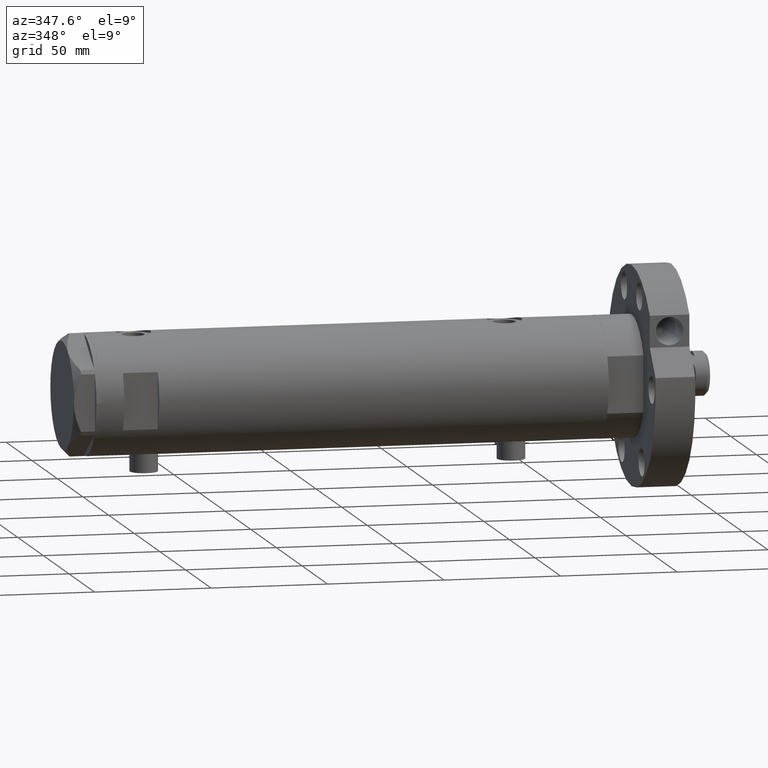
[diagram: clean part render]
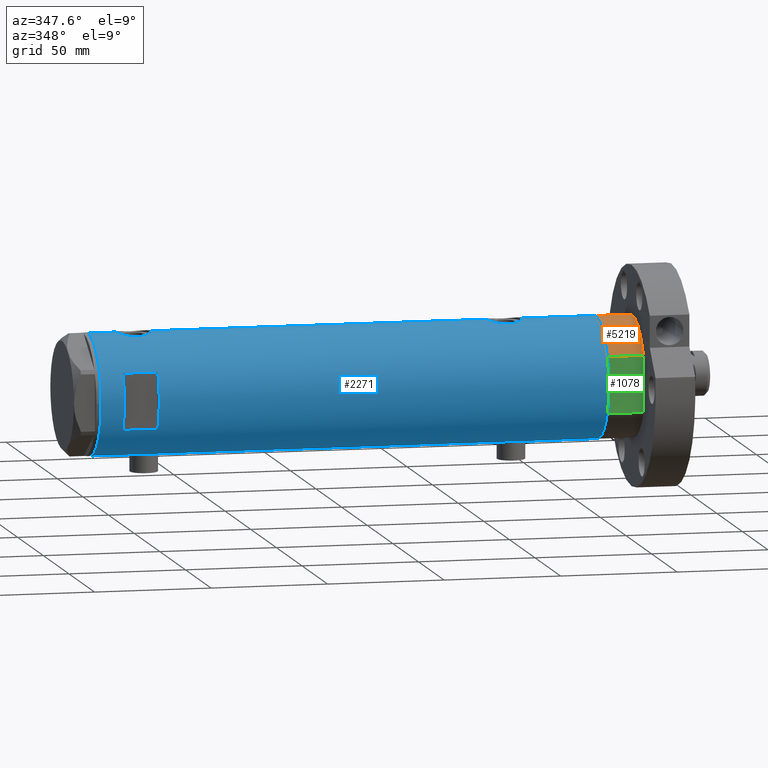
[diagram: same view with three faces highlighted in distinct colors, each labeled with its STEP entity id]
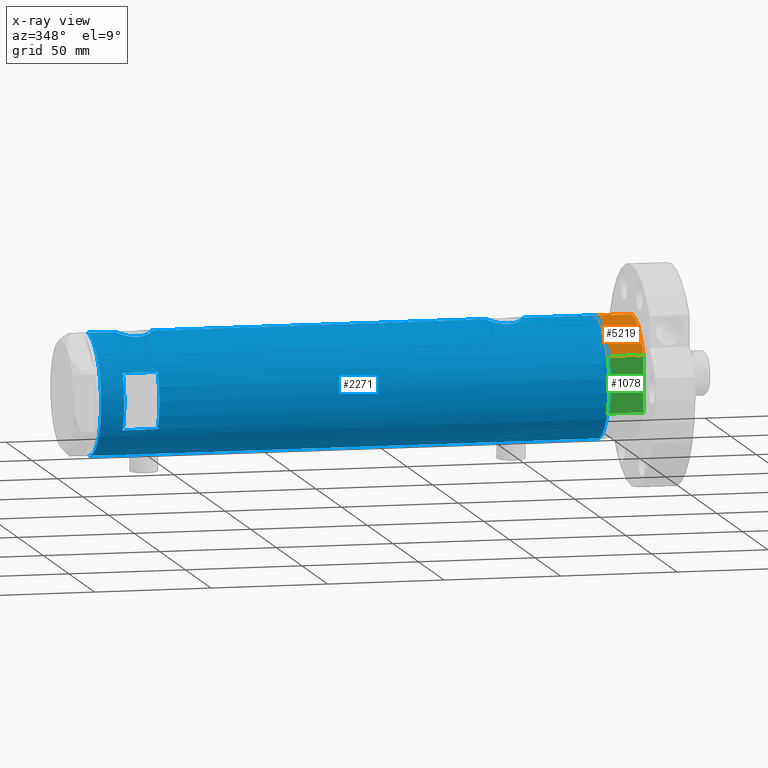
[diagram: x-ray of the same camera — body ghosted, the three highlighted faces saturated]
A machine part, auxiliary view with three faces highlighted in distinct colors.
The next image is the same camera in x-ray (body ghosted, the three faces saturated) — at least one of them is partly hidden behind the body in this view.
Their STEP definitions:

[orange] entity #5219 — the highlighted cylindrical surface (partial cylindrical patch) has radius 26 mm, axis along (-1, -0, 0).
#102 = DIRECTION ( 'NONE',  ( 1.000000000000000000, 0.000000000000000000, 0.000000000000000000 ) ) ;
#328 = VERTEX_POINT ( 'NONE', #2857 ) ;
#338 = AXIS2_PLACEMENT_3D ( 'NONE', #608, #6186, #1168 ) ;
#608 = CARTESIAN_POINT ( 'NONE',  ( 0.000000000000000000, 0.000000000000000000, 15.50000000000000000 ) ) ;
#636 = EDGE_CURVE ( 'NONE', #1123, #4785, #4142, .T. ) ;
#1123 = VERTEX_POINT ( 'NONE', #3710 ) ;
#1126 = DIRECTION ( 'NONE',  ( 0.000000000000000000, 0.000000000000000000, 1.000000000000000000 ) ) ;
#1135 = AXIS2_PLACEMENT_3D ( 'NONE', #4754, #3748, #1652 ) ;
#1168 = DIRECTION ( 'NONE',  ( -1.000000000000000000, 0.000000000000000000, 0.000000000000000000 ) ) ;
#1579 = CARTESIAN_POINT ( 'NONE',  ( -12.12435565298215323, -22.99999999999999645, 15.50000000000000000 ) ) ;
#1596 = AXIS2_PLACEMENT_3D ( 'NONE', #1654, #1126, #102 ) ;
#1652 = DIRECTION ( 'NONE',  ( 1.000000000000000000, 0.000000000000000000, 0.000000000000000000 ) ) ;
#1654 = CARTESIAN_POINT ( 'NONE',  ( 0.000000000000000000, 0.000000000000000000, 0.000000000000000000 ) ) ;
#2091 = CYLINDRICAL_SURFACE ( 'NONE', #338, 26.00000000000000355 ) ;
#2093 = VECTOR ( 'NONE', #4702, 1000.000000000000000 ) ;
#2138 = EDGE_CURVE ( 'NONE', #328, #4785, #3292, .T. ) ;
#2292 = LINE ( 'NONE', #6372, #6219 ) ;
#2568 = ORIENTED_EDGE ( 'NONE', *, *, #6271, .T. ) ;
#2732 = DIRECTION ( 'NONE',  ( -0.000000000000000000, -0.000000000000000000, -1.000000000000000000 ) ) ;
#2857 = CARTESIAN_POINT ( 'NONE',  ( -12.12435565298215501, -22.99999999999999645, 0.000000000000000000 ) ) ;
#2913 = EDGE_LOOP ( 'NONE', ( #6243, #2568, #3164, #4634 ) ) ;
#3164 = ORIENTED_EDGE ( 'NONE', *, *, #3879, .T. ) ;
#3292 = LINE ( 'NONE', #6256, #2093 ) ;
#3710 = CARTESIAN_POINT ( 'NONE',  ( -26.00000000000000355, 0.000000000000000000, 15.50000000000000000 ) ) ;
#3748 = DIRECTION ( 'NONE',  ( 0.000000000000000000, 0.000000000000000000, 1.000000000000000000 ) ) ;
#3879 = EDGE_CURVE ( 'NONE', #5275, #328, #6094, .T. ) ;
#4142 = CIRCLE ( 'NONE', #1135, 26.00000000000000355 ) ;
#4536 = CARTESIAN_POINT ( 'NONE',  ( -26.00000000000000355, 0.000000000000000000, 0.000000000000000000 ) ) ;
#4629 = FACE_OUTER_BOUND ( 'NONE', #2913, .T. ) ;
#4634 = ORIENTED_EDGE ( 'NONE', *, *, #2138, .T. ) ;
#4702 = DIRECTION ( 'NONE',  ( -0.000000000000000000, -0.000000000000000000, 1.000000000000000000 ) ) ;
#4754 = CARTESIAN_POINT ( 'NONE',  ( 0.000000000000000000, 0.000000000000000000, 15.50000000000000000 ) ) ;
#4785 = VERTEX_POINT ( 'NONE', #1579 ) ;
#5219 = ADVANCED_FACE ( 'NONE', ( #4629 ), #2091, .T. ) ;
#5275 = VERTEX_POINT ( 'NONE', #4536 ) ;
#6094 = CIRCLE ( 'NONE', #1596, 26.00000000000000355 ) ;
#6186 = DIRECTION ( 'NONE',  ( -0.000000000000000000, -0.000000000000000000, -1.000000000000000000 ) ) ;
#6219 = VECTOR ( 'NONE', #2732, 1000.000000000000000 ) ;
#6243 = ORIENTED_EDGE ( 'NONE', *, *, #636, .F. ) ;
#6256 = CARTESIAN_POINT ( 'NONE',  ( -12.12435565298215145, -22.99999999999999645, 0.000000000000000000 ) ) ;
#6271 = EDGE_CURVE ( 'NONE', #1123, #5275, #2292, .T. ) ;
#6372 = CARTESIAN_POINT ( 'NONE',  ( -26.00000000000000355, 0.000000000000000000, 15.50000000000000000 ) ) ;

[blue] entity #2271 — the highlighted cylindrical surface (partial cylindrical patch) has radius 26 mm, axis along (-1, -0, 0).
#10 = CARTESIAN_POINT ( 'NONE',  ( -25.57228991600091916, -4.705691472451703383, -76.78339690124650474 ) ) ;
#32 = CARTESIAN_POINT ( 'NONE',  ( 24.89854802586674865, -7.487520416261751244, 89.94815683577905929 ) ) ;
#44 = CARTESIAN_POINT ( 'NONE',  ( 12.12435565298214080, -23.00000000000000355, 98.95000000000001705 ) ) ;
#45 = CARTESIAN_POINT ( 'NONE',  ( -25.99036913299956453, -0.8159609457881454864, -78.86031143031891588 ) ) ;
#72 = CARTESIAN_POINT ( 'NONE',  ( -25.78943824387523520, -3.306687742228915372, -77.95754138783466658 ) ) ;
#122 = DIRECTION ( 'NONE',  ( 0.000000000000000000, 0.000000000000000000, 1.000000000000000000 ) ) ;
#131 = CARTESIAN_POINT ( 'NONE',  ( -25.24022290516699130, -6.239518219915429320, -73.06597215938428747 ) ) ;
#134 = B_SPLINE_CURVE_WITH_KNOTS ( 'NONE', 3,
 ( #4478, #3978, #615, #4637, #710, #3665, #2157, #3151, #2097, #2687, #4664, #4700, #5152, #3216, #684, #2658, #6221, #1741, #3700, #5731, #1241, #3224, #4745, #255, #5737, #2262, #4239, #6262, #3192, #1779, #3742, #1221, #5777, #6231, #5710, #720, #5193, #4711, #3944, #982, #917, #2413 ),
 .UNSPECIFIED., .F., .F.,
 ( 4, 2, 2, 2, 2, 2, 2, 2, 2, 2, 2, 2, 2, 2, 2, 2, 2, 2, 2, 2, 4 ),
 ( 0.01961238453869444676, 0.02083783025472769543, 0.02206327597076094410, 0.02267599882877755976, 0.02328872168679417543, 0.02451416740282743104, 0.02573961311886067971, 0.02696505883489393532, 0.02819050455092719093, 0.02880322740894379618, 0.02941595026696040144, 0.03064139598299361195, 0.03186684169902682245, 0.03309228741506003296, 0.03370501027307663822, 0.03431773313109324347, 0.03493045598910984872, 0.03554317884712646092, 0.03676862456315967143, 0.03799407027919288193, 0.03921951599522609938 ),
 .UNSPECIFIED. ) ;
#153 = CARTESIAN_POINT ( 'NONE',  ( 0.000000000000000000, 0.000000000000000000, 83.95000000000011653 ) ) ;
#163 = CARTESIAN_POINT ( 'NONE',  ( -25.57167894663063024, -4.701762988462084181, -68.52719549807581245 ) ) ;
#195 = CARTESIAN_POINT ( 'NONE',  ( -25.74330903162725903, -3.648508829439208068, -67.57132285284200179 ) ) ;
#255 = CARTESIAN_POINT ( 'NONE',  ( -25.28632996747172967, -6.050474653715409268, 86.56911870841543077 ) ) ;
#268 = CARTESIAN_POINT ( 'NONE',  ( 26.00000000000001066, -0.4982617809740571002, -77.25000000000004263 ) ) ;
#274 = DIRECTION ( 'NONE',  ( 1.000000000000000000, 0.000000000000000000, 0.000000000000000000 ) ) ;
#368 = CARTESIAN_POINT ( 'NONE',  ( 25.38109653984943748, -5.641393955635675361, -64.80180907551250868 ) ) ;
#424 = CARTESIAN_POINT ( 'NONE',  ( 26.00000000000000355, -3.975030973907779525E-20, 96.95000000000000284 ) ) ;
#441 = CARTESIAN_POINT ( 'NONE',  ( 25.11342038069226135, -6.734617143597214195, -66.41229304209502970 ) ) ;
#446 = VERTEX_POINT ( 'NONE', #766 ) ;
#452 = CARTESIAN_POINT ( 'NONE',  ( -26.00000000000000355, 3.184081677783118585E-15, -108.9500000000000028 ) ) ;
#465 = CARTESIAN_POINT ( 'NONE',  ( 25.59500516383205593, -4.575229401795806616, 83.50212244934579076 ) ) ;
#482 = CARTESIAN_POINT ( 'NONE',  ( 25.17510548814052029, -6.503212750695466227, -65.98238212184648432 ) ) ;
#501 = CARTESIAN_POINT ( 'NONE',  ( 24.89478872726945369, -7.499966281647711064, 89.69821850634781413 ) ) ;
#513 = CARTESIAN_POINT ( 'NONE',  ( -25.92425332714051933, -2.018894156999447631, -78.57896120675330565 ) ) ;
#533 = CARTESIAN_POINT ( 'NONE',  ( 25.03461301890608581, -7.019803056070516689, 86.79816816893104203 ) ) ;
#547 = VERTEX_POINT ( 'NONE', #1162 ) ;
#556 = EDGE_CURVE ( 'NONE', #4081, #3295, #5142, .T. ) ;
#564 = CARTESIAN_POINT ( 'NONE',  ( 25.93085545515512891, -1.956676574435516569, 96.70727036830268730 ) ) ;
#574 = CARTESIAN_POINT ( 'NONE',  ( -25.95218276861526974, -1.627663810194430960, -78.69850980387604977 ) ) ;
#615 = CARTESIAN_POINT ( 'NONE',  ( -25.99036913299955742, -0.8159609457881448202, 78.73968856968109264 ) ) ;
#663 = CARTESIAN_POINT ( 'NONE',  ( -25.38744165544136422, -5.612847683295913548, -75.42987583238478067 ) ) ;
#684 = CARTESIAN_POINT ( 'NONE',  ( -25.38744165544136777, -5.612847683295913548, 82.17012416761524207 ) ) ;
#710 = CARTESIAN_POINT ( 'NONE',  ( -25.92425332714051933, -2.018894156999441858, 79.02103879324673130 ) ) ;
#720 = CARTESIAN_POINT ( 'NONE',  ( -25.81232680456766815, -3.137210741985116513, 90.37113657221574670 ) ) ;
#727 = CARTESIAN_POINT ( 'NONE',  ( -25.38662204309617465, -5.616507264474307703, -69.87800622280676066 ) ) ;
#766 = CARTESIAN_POINT ( 'NONE',  ( -12.12435565298214080, -23.00000000000000355, 98.95000000000001705 ) ) ;
#874 = CARTESIAN_POINT ( 'NONE',  ( 24.96672817551788626, -7.257586026187406780, -67.79615800278703830 ) ) ;
#878 = LINE ( 'NONE', #4002, #4936 ) ;
#908 = CARTESIAN_POINT ( 'NONE',  ( 26.00000000000000355, 0.000000000000000000, -108.9500000000000028 ) ) ;
#917 = CARTESIAN_POINT ( 'NONE',  ( -25.99999999999999289, -0.4144764235405741237, 91.19999999999997442 ) ) ;
#935 = CARTESIAN_POINT ( 'NONE',  ( 25.78993643992928497, -3.329561377902416464, -63.01178439721262237 ) ) ;
#958 = CARTESIAN_POINT ( 'NONE',  ( 25.11243836838846377, -6.738202653785839935, 86.12043350844844269 ) ) ;
#969 = CARTESIAN_POINT ( 'NONE',  ( 25.52567976009756734, -4.956266804246113544, -64.09980072540906804 ) ) ;
#978 = FACE_BOUND ( 'NONE', #6191, .T. ) ;
#982 = CARTESIAN_POINT ( 'NONE',  ( -25.99009752186832856, -0.8230863847107351416, 91.15917071406683192 ) ) ;
#992 = CARTESIAN_POINT ( 'NONE',  ( 25.98599366666249466, -0.9828433289544136198, 96.90188401723477796 ) ) ;
#1033 = CARTESIAN_POINT ( 'NONE',  ( -25.42977453177915592, -5.420307583276858132, -75.78812271793360367 ) ) ;
#1042 = CARTESIAN_POINT ( 'NONE',  ( 26.00000000000000355, 1.142179864233347086E-15, 81.94999999999998863 ) ) ;
#1056 = CARTESIAN_POINT ( 'NONE',  ( 24.92415241886515531, -7.401968919186696638, 90.68323537444815940 ) ) ;
#1069 = CARTESIAN_POINT ( 'NONE',  ( -25.81160981652326925, -3.129523010631804159, -78.06392973722074657 ) ) ;
#1076 = CARTESIAN_POINT ( 'NONE',  ( -26.00000000000000355, 3.184081677783118585E-15, -108.9500000000000028 ) ) ;
#1118 = ORIENTED_EDGE ( 'NONE', *, *, #5055, .T. ) ;
#1122 = CARTESIAN_POINT ( 'NONE',  ( -26.00000000000000355, 1.227111019500118713E-15, 91.20000000000000284 ) ) ;
#1161 = VERTEX_POINT ( 'NONE', #1042 ) ;
#1162 = CARTESIAN_POINT ( 'NONE',  ( 12.12435565298214080, -23.00000000000000355, 83.95000000000001705 ) ) ;
#1190 = CARTESIAN_POINT ( 'NONE',  ( -25.31551596256916525, -5.928819821281961389, -74.67011491904084153 ) ) ;
#1221 = CARTESIAN_POINT ( 'NONE',  ( -25.64593536028936427, -4.278686337618962554, 89.51031602960877365 ) ) ;
#1241 = CARTESIAN_POINT ( 'NONE',  ( -25.23763877699557412, -6.249927116972443741, 84.74164472334534537 ) ) ;
#1258 = CARTESIAN_POINT ( 'NONE',  ( -25.95206678899177533, -1.628763264760248353, -66.60199186669787252 ) ) ;
#1274 = EDGE_CURVE ( 'NONE', #2477, #5688, #134, .T. ) ;
#1284 = AXIS2_PLACEMENT_3D ( 'NONE', #5462, #1418, #2412 ) ;
#1297 = ORIENTED_EDGE ( 'NONE', *, *, #3834, .F. ) ;
#1332 = CARTESIAN_POINT ( 'NONE',  ( 26.00000000000000355, 0.000000000000000000, -108.9500000000000028 ) ) ;
#1381 = CARTESIAN_POINT ( 'NONE',  ( -26.00000000000000355, 1.227111019500118713E-15, -66.40000000000000568 ) ) ;
#1418 = DIRECTION ( 'NONE',  ( 0.000000000000000000, 0.000000000000000000, 1.000000000000000000 ) ) ;
#1451 = CARTESIAN_POINT ( 'NONE',  ( 25.72873412774686841, -3.768477344985559085, 95.95287460144463410 ) ) ;
#1460 = CARTESIAN_POINT ( 'NONE',  ( -12.12435565298214080, -23.00000000000000355, 83.95000000000001705 ) ) ;
#1486 = CARTESIAN_POINT ( 'NONE',  ( 25.31004928890825667, -5.952041021437470825, 94.01980599883506784 ) ) ;
#1498 = CARTESIAN_POINT ( 'NONE',  ( 24.89475831528844552, -7.500067228253141316, -70.24337428253535620 ) ) ;
#1520 = CARTESIAN_POINT ( 'NONE',  ( 26.00000000000000355, 1.142179864233347086E-15, 81.94999999999998863 ) ) ;
#1569 = CARTESIAN_POINT ( 'NONE',  ( 25.78902964777117290, -3.336582972512958101, -76.48475840457741981 ) ) ;
#1587 = CARTESIAN_POINT ( 'NONE',  ( 26.00000000000000355, 0.000000000000000000, -108.9500000000000028 ) ) ;
#1722 = CARTESIAN_POINT ( 'NONE',  ( -25.28680988956730147, -6.048472998962280300, -74.27627694188244334 ) ) ;
#1728 = CARTESIAN_POINT ( 'NONE',  ( 26.00000000000000000, -0.4910237949823181847, -62.24999999999997868 ) ) ;
#1741 = CARTESIAN_POINT ( 'NONE',  ( -25.25769689814630325, -6.168504065326069430, 83.92353364703255636 ) ) ;
#1779 = CARTESIAN_POINT ( 'NONE',  ( -25.57167894663063024, -4.701762988462085069, 89.07280450192419607 ) ) ;
#1870 = CARTESIAN_POINT ( 'NONE',  ( 24.96970063328117462, -7.247045583599700080, -71.69719214854804079 ) ) ;
#1918 = ORIENTED_EDGE ( 'NONE', *, *, #556, .F. ) ;
#1961 = DIRECTION ( 'NONE',  ( 0.000000000000000000, 0.000000000000000000, 1.000000000000000000 ) ) ;
#1963 = EDGE_CURVE ( 'NONE', #446, #3225, #2827, .T. ) ;
#1981 = CARTESIAN_POINT ( 'NONE',  ( 25.59665538672497576, -4.580438224580683837, 95.40889127712392792 ) ) ;
#1998 = VECTOR ( 'NONE', #5504, 1000.000000000000000 ) ;
#2029 = CARTESIAN_POINT ( 'NONE',  ( 12.12435565298214080, -23.00000000000000355, -108.9500000000000028 ) ) ;
#2032 = VECTOR ( 'NONE', #3629, 1000.000000000000000 ) ;
#2056 = B_SPLINE_CURVE_WITH_KNOTS ( 'NONE', 3,
 ( #5534, #6438, #992, #564, #2542, #2963, #1451, #1981, #2997, #4907, #5437, #1486, #4016, #3983, #5003, #5402, #4968, #1056, #6070, #32, #501, #2075, #3034, #4484, #2453, #3454, #533, #958, #4043, #2481, #2926, #6467, #6003, #465, #5034, #4423, #3951, #2516, #5968, #4553, #5470, #1520 ),
 .UNSPECIFIED., .F., .F.,
 ( 4, 2, 2, 2, 2, 2, 2, 2, 2, 2, 2, 2, 2, 2, 2, 2, 2, 2, 2, 2, 4 ),
 ( 0.02357432247332889169, 0.02504731828495727897, 0.02652031409658566277, 0.02799330990821405005, 0.02946630571984243385, 0.03020280362565662749, 0.03093930153147082113, 0.03241229734309917371, 0.03388529315472752629, 0.03462179106054170258, 0.03535828896635587887, 0.03683128477798423145, 0.03756778268379840774, 0.03830428058961257709, 0.03977727640124092967, 0.04125027221286928225, 0.04198677011868344466, 0.04272326802449760708, 0.04419626383612591108, 0.04566925964775421509, 0.04714225545938251910 ),
 .UNSPECIFIED. ) ;
#2075 = CARTESIAN_POINT ( 'NONE',  ( 24.89475831528844907, -7.500067228253142204, 88.95662571746466085 ) ) ;
#2097 = CARTESIAN_POINT ( 'NONE',  ( -25.78943824387523520, -3.306687742228914484, 79.64245861216535616 ) ) ;
#2114 = CARTESIAN_POINT ( 'NONE',  ( -25.25025691038241860, -6.198787452305312584, -73.47441165395792950 ) ) ;
#2116 = CARTESIAN_POINT ( 'NONE',  ( 25.17393786935996403, -6.507882790539431639, -73.51037333344034153 ) ) ;
#2157 = CARTESIAN_POINT ( 'NONE',  ( -25.85288666140180069, -2.767917424206677524, 79.34257790010329359 ) ) ;
#2182 = DIRECTION ( 'NONE',  ( -0.000000000000000000, 0.000000000000000000, -1.000000000000000000 ) ) ;
#2202 = CARTESIAN_POINT ( 'NONE',  ( -26.00000000000000355, 1.227111019500118713E-15, -66.40000000000000568 ) ) ;
#2214 = B_SPLINE_CURVE_WITH_KNOTS ( 'NONE', 3,
 ( #5513, #3530, #45, #574, #513, #2495, #5547, #1069, #72, #2554, #5448, #10, #3995, #1033, #663, #1190, #1722, #4589, #2114, #131, #4086, #3590, #2239, #4679, #3684, #727, #6240, #4218, #5614, #163, #2671, #2578, #2644, #4650, #195, #2609, #5645, #4147, #1258, #4719, #5105, #2202 ),
 .UNSPECIFIED., .F., .F.,
 ( 4, 2, 2, 2, 2, 2, 2, 2, 2, 2, 2, 2, 2, 2, 2, 2, 2, 2, 2, 2, 4 ),
 ( 0.01961238453869445023, 0.02083783025472766420, 0.02206327597076088165, 0.02267599882877747997, 0.02328872168679408175, 0.02451416740282726103, 0.02573961311886044032, 0.02696505883489361960, 0.02819050455092679541, 0.02880322740894340761, 0.02941595026696001633, 0.03064139598299327888, 0.03186684169902653796, 0.03309228741505979704, 0.03370501027307643005, 0.03431773313109305612, 0.03493045598910968219, 0.03554317884712631520, 0.03676862456315957428, 0.03799407027919284030, 0.03921951599522609938 ),
 .UNSPECIFIED. ) ;
#2220 = CARTESIAN_POINT ( 'NONE',  ( -26.00000000000000355, 3.184077527325983904E-15, -78.90000000000000568 ) ) ;
#2239 = CARTESIAN_POINT ( 'NONE',  ( -25.24765475072630139, -6.209883762780003202, -71.83321815644899289 ) ) ;
#2262 = CARTESIAN_POINT ( 'NONE',  ( -25.38662204309616399, -5.616507264474307703, 87.72199377719323365 ) ) ;
#2271 = ADVANCED_FACE ( 'NONE', ( #4865, #978 ), #3389, .T. ) ;
#2323 = AXIS2_PLACEMENT_3D ( 'NONE', #153, #3159, #5124 ) ;
#2342 = CARTESIAN_POINT ( 'NONE',  ( 24.91324908721445297, -7.438459228814674695, -68.75982500625811156 ) ) ;
#2371 = LINE ( 'NONE', #2029, #5468 ) ;
#2372 = EDGE_CURVE ( 'NONE', #5688, #4213, #5926, .T. ) ;
#2403 = DIRECTION ( 'NONE',  ( 0.000000000000000000, 0.000000000000000000, 1.000000000000000000 ) ) ;
#2412 = DIRECTION ( 'NONE',  ( 1.000000000000000000, 0.000000000000000000, 0.000000000000000000 ) ) ;
#2413 = CARTESIAN_POINT ( 'NONE',  ( -26.00000000000000355, 1.227111019500118713E-15, 91.20000000000000284 ) ) ;
#2453 = CARTESIAN_POINT ( 'NONE',  ( 24.96970063328116751, -7.247045583599700080, 87.50280785145197626 ) ) ;
#2477 = VERTEX_POINT ( 'NONE', #2715 ) ;
#2481 = CARTESIAN_POINT ( 'NONE',  ( 25.30930190055639528, -5.959775463244130655, 84.87025956521969761 ) ) ;
#2495 = CARTESIAN_POINT ( 'NONE',  ( -25.87202607293667000, -2.583404329177999337, -78.34473666854512430 ) ) ;
#2497 = CARTESIAN_POINT ( 'NONE',  ( 25.72912156655466376, -3.765948295762498788, -76.25442975399225531 ) ) ;
#2516 = CARTESIAN_POINT ( 'NONE',  ( 25.88994451797511687, -2.432613607265607936, 82.33859031286796437 ) ) ;
#2542 = CARTESIAN_POINT ( 'NONE',  ( 25.89059789403177092, -2.425642437452268041, 96.56377447242302026 ) ) ;
#2554 = CARTESIAN_POINT ( 'NONE',  ( -25.72076778631230098, -3.815670258243491819, -77.61687810531877574 ) ) ;
#2569 = EDGE_CURVE ( 'NONE', #3213, #446, #5438, .T. ) ;
#2578 = CARTESIAN_POINT ( 'NONE',  ( -25.64593536028936072, -4.278686337618961666, -68.08968397039120646 ) ) ;
#2609 = CARTESIAN_POINT ( 'NONE',  ( -25.81232680456766815, -3.137210741985112072, -67.22886342778420499 ) ) ;
#2619 = EDGE_CURVE ( 'NONE', #6406, #4860, #5451, .T. ) ;
#2644 = CARTESIAN_POINT ( 'NONE',  ( -25.67063510297210271, -4.128418051804843003, -67.95317424728736455 ) ) ;
#2658 = CARTESIAN_POINT ( 'NONE',  ( -25.31551596256916525, -5.928819821281963165, 82.92988508095918121 ) ) ;
#2671 = CARTESIAN_POINT ( 'NONE',  ( -25.59645788645699582, -4.565358797148518555, -68.37669470796522830 ) ) ;
#2687 = CARTESIAN_POINT ( 'NONE',  ( -25.72076778631230098, -3.815670258243490043, 79.98312189468119016 ) ) ;
#2715 = CARTESIAN_POINT ( 'NONE',  ( -26.00000000000000355, 3.184077527313362130E-15, 78.69999999999998863 ) ) ;
#2739 = CARTESIAN_POINT ( 'NONE',  ( 25.88994451797512397, -2.432613607265610156, -76.86140968713208110 ) ) ;
#2827 = LINE ( 'NONE', #5875, #1998 ) ;
#2878 = DIRECTION ( 'NONE',  ( 0.000000000000000000, 0.000000000000000000, 1.000000000000000000 ) ) ;
#2906 = CARTESIAN_POINT ( 'NONE',  ( 25.59665538672497220, -4.580438224580683837, -63.79110872287611755 ) ) ;
#2926 = CARTESIAN_POINT ( 'NONE',  ( 25.38125492692911678, -5.649348210287295835, 84.49305665653602659 ) ) ;
#2942 = CARTESIAN_POINT ( 'NONE',  ( 25.27534302296961854, -6.097250460344751488, -65.37590386902925843 ) ) ;
#2963 = CARTESIAN_POINT ( 'NONE',  ( 25.78993643992928142, -3.329561377902412467, 96.18821560278738048 ) ) ;
#2969 = ORIENTED_EDGE ( 'NONE', *, *, #4298, .F. ) ;
#2978 = CARTESIAN_POINT ( 'NONE',  ( 25.52449676677458967, -4.953491517965894708, -75.38674491334074901 ) ) ;
#2997 = CARTESIAN_POINT ( 'NONE',  ( 25.52567976009756023, -4.956266804246118873, 95.10019927459099165 ) ) ;
#3034 = CARTESIAN_POINT ( 'NONE',  ( 24.90947356773249055, -7.451722770779351634, 88.46809158171845411 ) ) ;
#3076 = EDGE_LOOP ( 'NONE', ( #6483, #4622, #1118, #1918, #4384, #3193, #3399, #5337, #3450, #4080, #4039, #1297 ) ) ;
#3108 = CARTESIAN_POINT ( 'NONE',  ( 25.30930190055638818, -5.959775463244130655, -74.32974043478030524 ) ) ;
#3121 = VECTOR ( 'NONE', #4378, 1000.000000000000000 ) ;
#3151 = CARTESIAN_POINT ( 'NONE',  ( -25.81160981652327635, -3.129523010631801494, 79.53607026277927616 ) ) ;
#3159 = DIRECTION ( 'NONE',  ( -0.000000000000000000, -4.625929269271486900E-15, 1.000000000000000000 ) ) ;
#3192 = CARTESIAN_POINT ( 'NONE',  ( -25.52274351135604746, -4.960534548086194206, 88.75751745340733123 ) ) ;
#3193 = ORIENTED_EDGE ( 'NONE', *, *, #6447, .F. ) ;
#3213 = VERTEX_POINT ( 'NONE', #44 ) ;
#3216 = CARTESIAN_POINT ( 'NONE',  ( -25.42977453177915592, -5.420307583276858132, 81.81187728206637644 ) ) ;
#3224 = CARTESIAN_POINT ( 'NONE',  ( -25.23758491649666524, -6.250144606721703688, 85.36011699571807299 ) ) ;
#3225 = VERTEX_POINT ( 'NONE', #1460 ) ;
#3295 = VERTEX_POINT ( 'NONE', #5482 ) ;
#3339 = ORIENTED_EDGE ( 'NONE', *, *, #1963, .F. ) ;
#3343 = CARTESIAN_POINT ( 'NONE',  ( 26.00000000000000355, 3.155021778966484351E-16, -77.25000000000001421 ) ) ;
#3369 = CARTESIAN_POINT ( 'NONE',  ( 26.00000000000000355, -3.975028449552882818E-20, -62.24999999999999289 ) ) ;
#3382 = CARTESIAN_POINT ( 'NONE',  ( 25.41756773306325812, -5.475260495868981003, -64.61859126343054527 ) ) ;
#3389 = CYLINDRICAL_SURFACE ( 'NONE', #5654, 26.00000000000000355 ) ;
#3399 = ORIENTED_EDGE ( 'NONE', *, *, #2619, .T. ) ;
#3432 = DIRECTION ( 'NONE',  ( 1.000000000000000000, 0.000000000000000000, 0.000000000000000000 ) ) ;
#3450 = ORIENTED_EDGE ( 'NONE', *, *, #2372, .F. ) ;
#3454 = CARTESIAN_POINT ( 'NONE',  ( 25.01107424167501492, -7.102941973849622670, 87.02937151337422961 ) ) ;
#3480 = VERTEX_POINT ( 'NONE', #1381 ) ;
#3498 = CARTESIAN_POINT ( 'NONE',  ( 25.03461301890608937, -7.019803056070514913, -72.40183183106897502 ) ) ;
#3530 = CARTESIAN_POINT ( 'NONE',  ( -25.99999999999999645, -0.4086738135806038397, -78.90000000000000568 ) ) ;
#3538 = VECTOR ( 'NONE', #5949, 1000.000000000000000 ) ;
#3590 = CARTESIAN_POINT ( 'NONE',  ( -25.23758491649665459, -6.250144606721702800, -72.23988300428190712 ) ) ;
#3629 = DIRECTION ( 'NONE',  ( 0.000000000000000000, 0.000000000000000000, 1.000000000000000000 ) ) ;
#3665 = CARTESIAN_POINT ( 'NONE',  ( -25.87202607293667000, -2.583404329177993120, 79.25526333145485580 ) ) ;
#3684 = CARTESIAN_POINT ( 'NONE',  ( -25.31538696791482224, -5.929326713517954595, -70.63203367791901144 ) ) ;
#3700 = CARTESIAN_POINT ( 'NONE',  ( -25.25025691038242215, -6.198787452305312584, 84.12558834604206481 ) ) ;
#3740 = AXIS2_PLACEMENT_3D ( 'NONE', #5660, #2182, #274 ) ;
#3742 = CARTESIAN_POINT ( 'NONE',  ( -25.59645788645699227, -4.565358797148518555, 89.22330529203479443 ) ) ;
#3763 = CIRCLE ( 'NONE', #2323, 26.00000000000000355 ) ;
#3814 = EDGE_CURVE ( 'NONE', #4213, #4860, #5558, .T. ) ;
#3821 = DIRECTION ( 'NONE',  ( 0.000000000000000000, 0.000000000000000000, 1.000000000000000000 ) ) ;
#3834 = EDGE_CURVE ( 'NONE', #4966, #3480, #2214, .T. ) ;
#3863 = CARTESIAN_POINT ( 'NONE',  ( 25.89059789403177092, -2.425642437452270705, -62.63622552757698259 ) ) ;
#3892 = CARTESIAN_POINT ( 'NONE',  ( -26.00000000000000355, 3.184081677783118585E-15, -108.9500000000000028 ) ) ;
#3928 = CARTESIAN_POINT ( 'NONE',  ( 25.98599366666249111, -0.9828433289544102891, -62.29811598276526752 ) ) ;
#3944 = CARTESIAN_POINT ( 'NONE',  ( -25.95206678899177888, -1.628763264760248353, 90.99800813330213600 ) ) ;
#3951 = CARTESIAN_POINT ( 'NONE',  ( 25.78902964777116225, -3.336582972512959877, 82.71524159542262566 ) ) ;
#3952 = CARTESIAN_POINT ( 'NONE',  ( -26.00000000000000355, 3.184081677783118585E-15, 108.9500000000000028 ) ) ;
#3965 = CARTESIAN_POINT ( 'NONE',  ( 24.89478872726945013, -7.499966281647711064, -69.50178149365218871 ) ) ;
#3978 = CARTESIAN_POINT ( 'NONE',  ( -26.00000000000001066, -0.4086738135806035066, 78.70000000000000284 ) ) ;
#3983 = CARTESIAN_POINT ( 'NONE',  ( 25.17510548814052029, -6.503212750695476885, 93.21761787815349010 ) ) ;
#3984 = CIRCLE ( 'NONE', #1284, 26.00000000000000355 ) ;
#3995 = CARTESIAN_POINT ( 'NONE',  ( -25.52190669608695472, -4.968444991210427375, -76.46341092192484723 ) ) ;
#4002 = CARTESIAN_POINT ( 'NONE',  ( 26.00000000000000355, 0.000000000000000000, -108.9500000000000028 ) ) ;
#4016 = CARTESIAN_POINT ( 'NONE',  ( 25.27534302296961499, -6.097250460344759482, 93.82409613097075862 ) ) ;
#4032 = LINE ( 'NONE', #4063, #2032 ) ;
#4039 = ORIENTED_EDGE ( 'NONE', *, *, #5326, .F. ) ;
#4043 = CARTESIAN_POINT ( 'NONE',  ( 25.17393786935995692, -6.507882790539431639, 85.68962666655968974 ) ) ;
#4063 = CARTESIAN_POINT ( 'NONE',  ( -26.00000000000000355, 3.184081677783118585E-15, -108.9500000000000028 ) ) ;
#4080 = ORIENTED_EDGE ( 'NONE', *, *, #1274, .F. ) ;
#4081 = VERTEX_POINT ( 'NONE', #3369 ) ;
#4086 = CARTESIAN_POINT ( 'NONE',  ( -25.23763877699556701, -6.249927116972441965, -72.85835527665466316 ) ) ;
#4123 = CARTESIAN_POINT ( 'NONE',  ( 25.11243836838845311, -6.738202653785838159, -73.07956649155158857 ) ) ;
#4147 = CARTESIAN_POINT ( 'NONE',  ( -25.92364458890659407, -2.026637113504532017, -66.72369009308523857 ) ) ;
#4213 = VERTEX_POINT ( 'NONE', #3952 ) ;
#4218 = CARTESIAN_POINT ( 'NONE',  ( -25.49846181844014836, -5.083495422175115408, -69.00822496617402635 ) ) ;
#4239 = CARTESIAN_POINT ( 'NONE',  ( -25.42883439573799720, -5.424786127492320809, 88.08081457260908564 ) ) ;
#4253 = LINE ( 'NONE', #3892, #4943 ) ;
#4298 = EDGE_CURVE ( 'NONE', #3225, #547, #3763, .T. ) ;
#4339 = CARTESIAN_POINT ( 'NONE',  ( 24.95200646071794637, -7.307522494171291960, -71.45607564187282890 ) ) ;
#4378 = DIRECTION ( 'NONE',  ( 0.000000000000000000, 0.000000000000000000, 1.000000000000000000 ) ) ;
#4384 = ORIENTED_EDGE ( 'NONE', *, *, #4396, .T. ) ;
#4396 = EDGE_CURVE ( 'NONE', #4081, #1161, #4610, .T. ) ;
#4423 = CARTESIAN_POINT ( 'NONE',  ( 25.72912156655464955, -3.765948295762494791, 82.94557024600776174 ) ) ;
#4478 = CARTESIAN_POINT ( 'NONE',  ( -26.00000000000000355, 3.184077527313362130E-15, 78.69999999999998863 ) ) ;
#4484 = CARTESIAN_POINT ( 'NONE',  ( 24.95200646071793926, -7.307522494171290184, 87.74392435812720237 ) ) ;
#4511 = EDGE_CURVE ( 'NONE', #5266, #5912, #3984, .T. ) ;
#4517 = VECTOR ( 'NONE', #122, 1000.000000000000000 ) ;
#4553 = CARTESIAN_POINT ( 'NONE',  ( 25.98569226047904834, -0.9886551788957221865, 81.99917623399818467 ) ) ;
#4589 = CARTESIAN_POINT ( 'NONE',  ( -25.25769689814629970, -6.168504065326070318, -73.67646635296743796 ) ) ;
#4610 = LINE ( 'NONE', #1587, #4517 ) ;
#4622 = ORIENTED_EDGE ( 'NONE', *, *, #4511, .T. ) ;
#4637 = CARTESIAN_POINT ( 'NONE',  ( -25.95218276861526263, -1.627663810194431404, 78.90149019612394454 ) ) ;
#4650 = CARTESIAN_POINT ( 'NONE',  ( -25.71926338401909362, -3.813768894920908537, -67.69427860166180722 ) ) ;
#4653 = CARTESIAN_POINT ( 'NONE',  ( 26.00000000000000355, -3.975028449552882818E-20, -62.24999999999999289 ) ) ;
#4664 = CARTESIAN_POINT ( 'NONE',  ( -25.67167563980648026, -4.129238867693847403, 80.24065943568896841 ) ) ;
#4679 = CARTESIAN_POINT ( 'NONE',  ( -25.28632996747171546, -6.050474653715410156, -71.03088129158460617 ) ) ;
#4699 = CARTESIAN_POINT ( 'NONE',  ( 26.00000000000000355, 0.000000000000000000, 108.9500000000000028 ) ) ;
#4700 = CARTESIAN_POINT ( 'NONE',  ( -25.57228991600092272, -4.705691472451695390, 80.81660309875346115 ) ) ;
#4711 = CARTESIAN_POINT ( 'NONE',  ( -25.92364458890660472, -2.026637113504541343, 90.87630990691475574 ) ) ;
#4719 = CARTESIAN_POINT ( 'NONE',  ( -25.99009752186833566, -0.8230863847107360298, -66.44082928593320503 ) ) ;
#4722 = CARTESIAN_POINT ( 'NONE',  ( 25.98569226047905900, -0.9886551788957241849, -77.20082376600181817 ) ) ;
#4745 = CARTESIAN_POINT ( 'NONE',  ( -25.24765475072630139, -6.209883762780004091, 85.76678184355100143 ) ) ;
#4761 = CARTESIAN_POINT ( 'NONE',  ( 25.93098857934041490, -1.953835360821270628, -77.00773664702565213 ) ) ;
#4829 = CARTESIAN_POINT ( 'NONE',  ( 24.90947356773249055, -7.451722770779349858, -70.73190841828153452 ) ) ;
#4860 = VERTEX_POINT ( 'NONE', #4699 ) ;
#4865 = FACE_OUTER_BOUND ( 'NONE', #3076, .T. ) ;
#4907 = CARTESIAN_POINT ( 'NONE',  ( 25.41756773306325456, -5.475260495868988109, 94.58140873656952863 ) ) ;
#4918 = CARTESIAN_POINT ( 'NONE',  ( 25.31004928890825312, -5.952041021437469048, -65.18019400116494921 ) ) ;
#4936 = VECTOR ( 'NONE', #2878, 1000.000000000000000 ) ;
#4943 = VECTOR ( 'NONE', #3821, 1000.000000000000000 ) ;
#4966 = VERTEX_POINT ( 'NONE', #2220 ) ;
#4968 = CARTESIAN_POINT ( 'NONE',  ( 24.96672817551787915, -7.257586026187405004, 91.40384199721297875 ) ) ;
#5003 = CARTESIAN_POINT ( 'NONE',  ( 25.11342038069227200, -6.734617143597215971, 92.78770695790494472 ) ) ;
#5017 = CARTESIAN_POINT ( 'NONE',  ( 25.59500516383204882, -4.575229401795805728, -75.69787755065419788 ) ) ;
#5034 = CARTESIAN_POINT ( 'NONE',  ( 25.62983961939739785, -4.376509667782460866, 83.35441500957037420 ) ) ;
#5055 = EDGE_CURVE ( 'NONE', #5912, #3295, #878, .T. ) ;
#5105 = CARTESIAN_POINT ( 'NONE',  ( -26.00000000000001066, -0.4144764235405758446, -66.40000000000004832 ) ) ;
#5109 = CARTESIAN_POINT ( 'NONE',  ( 25.38125492692910967, -5.649348210287295835, -74.70694334346399046 ) ) ;
#5124 = DIRECTION ( 'NONE',  ( 1.776356839400250465E-15, 1.000000000000000000, 4.803849625781927035E-15 ) ) ;
#5135 = EDGE_CURVE ( 'NONE', #547, #3213, #2371, .T. ) ;
#5142 = B_SPLINE_CURVE_WITH_KNOTS ( 'NONE', 3,
 ( #4653, #1728, #3928, #5889, #3863, #935, #5450, #2906, #969, #3382, #368, #4918, #2942, #482, #441, #6351, #874, #6384, #2342, #6480, #3965, #1498, #4829, #4339, #1870, #5380, #3498, #4123, #2116, #3108, #5109, #5486, #2978, #5017, #5585, #2497, #1569, #2739, #4761, #4722, #268, #3343 ),
 .UNSPECIFIED., .F., .F.,
 ( 4, 2, 2, 2, 2, 2, 2, 2, 2, 2, 2, 2, 2, 2, 2, 2, 2, 2, 2, 2, 4 ),
 ( 0.02357432247332888822, 0.02504731828495722692, 0.02652031409658556910, 0.02799330990821390780, 0.02946630571984224650, 0.03020280362565641585, 0.03093930153147058520, 0.03241229734309895860, 0.03388529315472733200, 0.03462179106054152217, 0.03535828896635570540, 0.03683128477798407879, 0.03756778268379826896, 0.03830428058961245219, 0.03977727640124082559, 0.04125027221286919898, 0.04198677011868337527, 0.04272326802449755156, 0.04419626383612587639, 0.04566925964775419428, 0.04714225545938251910 ),
 .UNSPECIFIED. ) ;
#5152 = CARTESIAN_POINT ( 'NONE',  ( -25.52190669608696183, -4.968444991210429151, 81.13658907807514709 ) ) ;
#5181 = ORIENTED_EDGE ( 'NONE', *, *, #2569, .F. ) ;
#5193 = CARTESIAN_POINT ( 'NONE',  ( -25.85385060263650914, -2.778671585188189574, 90.56314451304237423 ) ) ;
#5266 = VERTEX_POINT ( 'NONE', #1076 ) ;
#5326 = EDGE_CURVE ( 'NONE', #3480, #2477, #4032, .T. ) ;
#5337 = ORIENTED_EDGE ( 'NONE', *, *, #3814, .F. ) ;
#5380 = CARTESIAN_POINT ( 'NONE',  ( 25.01107424167500071, -7.102941973849621782, -72.17062848662580166 ) ) ;
#5402 = CARTESIAN_POINT ( 'NONE',  ( 25.00829008792690900, -7.115081037226478777, 91.87301003740817862 ) ) ;
#5437 = CARTESIAN_POINT ( 'NONE',  ( 25.38109653984943392, -5.641393955635675361, 94.39819092448752258 ) ) ;
#5438 = CIRCLE ( 'NONE', #3740, 26.00000000000000355 ) ;
#5448 = CARTESIAN_POINT ( 'NONE',  ( -25.67167563980648382, -4.129238867693852733, -77.35934056431106853 ) ) ;
#5450 = CARTESIAN_POINT ( 'NONE',  ( 25.72873412774686130, -3.768477344985557753, -63.24712539855536875 ) ) ;
#5451 = LINE ( 'NONE', #908, #3538 ) ;
#5462 = CARTESIAN_POINT ( 'NONE',  ( 0.000000000000000000, 0.000000000000000000, -108.9500000000000028 ) ) ;
#5468 = VECTOR ( 'NONE', #2403, 1000.000000000000000 ) ;
#5470 = CARTESIAN_POINT ( 'NONE',  ( 26.00000000000000000, -0.4982617809740604309, 81.94999999999998863 ) ) ;
#5482 = CARTESIAN_POINT ( 'NONE',  ( 26.00000000000000355, 3.155021778966484351E-16, -77.25000000000001421 ) ) ;
#5486 = CARTESIAN_POINT ( 'NONE',  ( 25.48871066912673911, -5.133852125086513674, -75.22290306743980182 ) ) ;
#5504 = DIRECTION ( 'NONE',  ( -0.000000000000000000, -0.000000000000000000, -1.000000000000000000 ) ) ;
#5513 = CARTESIAN_POINT ( 'NONE',  ( -26.00000000000000355, 3.184077527325983904E-15, -78.90000000000000568 ) ) ;
#5534 = CARTESIAN_POINT ( 'NONE',  ( 26.00000000000000355, -3.975030973907779525E-20, 96.95000000000000284 ) ) ;
#5547 = CARTESIAN_POINT ( 'NONE',  ( -25.85288666140181135, -2.767917424206679744, -78.25742209989670073 ) ) ;
#5558 = CIRCLE ( 'NONE', #5763, 26.00000000000000355 ) ;
#5585 = CARTESIAN_POINT ( 'NONE',  ( 25.62983961939740141, -4.376509667782460866, -75.84558499042961444 ) ) ;
#5614 = CARTESIAN_POINT ( 'NONE',  ( -25.52274351135605102, -4.960534548086195095, -68.84248254659266308 ) ) ;
#5645 = CARTESIAN_POINT ( 'NONE',  ( -25.85385060263651269, -2.778671585188182025, -67.03685548695763430 ) ) ;
#5654 = AXIS2_PLACEMENT_3D ( 'NONE', #6428, #6490, #5864 ) ;
#5660 = CARTESIAN_POINT ( 'NONE',  ( 0.000000000000000000, 0.000000000000000000, 98.95000000000001705 ) ) ;
#5688 = VERTEX_POINT ( 'NONE', #1122 ) ;
#5710 = CARTESIAN_POINT ( 'NONE',  ( -25.74330903162726258, -3.648508829439215617, 90.02867714715799252 ) ) ;
#5731 = CARTESIAN_POINT ( 'NONE',  ( -25.24022290516698774, -6.239518219915429320, 84.53402784061569264 ) ) ;
#5737 = CARTESIAN_POINT ( 'NONE',  ( -25.31538696791482224, -5.929326713517952818, 86.96796632208101130 ) ) ;
#5753 = EDGE_CURVE ( 'NONE', #5266, #4966, #4253, .T. ) ;
#5763 = AXIS2_PLACEMENT_3D ( 'NONE', #6450, #1961, #3432 ) ;
#5777 = CARTESIAN_POINT ( 'NONE',  ( -25.67063510297210271, -4.128418051804843003, 89.64682575271265819 ) ) ;
#5858 = ORIENTED_EDGE ( 'NONE', *, *, #5135, .F. ) ;
#5864 = DIRECTION ( 'NONE',  ( 1.000000000000000000, 0.000000000000000000, 0.000000000000000000 ) ) ;
#5875 = CARTESIAN_POINT ( 'NONE',  ( -12.12435565298214080, -23.00000000000000355, -108.9500000000000028 ) ) ;
#5889 = CARTESIAN_POINT ( 'NONE',  ( 25.93085545515513246, -1.956676574435514349, -62.49272963169730133 ) ) ;
#5912 = VERTEX_POINT ( 'NONE', #1332 ) ;
#5926 = LINE ( 'NONE', #452, #3121 ) ;
#5949 = DIRECTION ( 'NONE',  ( 0.000000000000000000, 0.000000000000000000, 1.000000000000000000 ) ) ;
#5968 = CARTESIAN_POINT ( 'NONE',  ( 25.93098857934040780, -1.953835360821273515, 82.19226335297440755 ) ) ;
#6003 = CARTESIAN_POINT ( 'NONE',  ( 25.52449676677458967, -4.953491517965892932, 83.81325508665925383 ) ) ;
#6070 = CARTESIAN_POINT ( 'NONE',  ( 24.91324908721445652, -7.438459228814672919, 90.44017499374189129 ) ) ;
#6191 = EDGE_LOOP ( 'NONE', ( #2969, #3339, #5181, #5858 ) ) ;
#6221 = CARTESIAN_POINT ( 'NONE',  ( -25.28680988956730147, -6.048472998962280300, 83.32372305811755098 ) ) ;
#6231 = CARTESIAN_POINT ( 'NONE',  ( -25.71926338401910073, -3.813768894920909425, 89.90572139833814447 ) ) ;
#6240 = CARTESIAN_POINT ( 'NONE',  ( -25.42883439573799720, -5.424786127492319920, -69.51918542739090867 ) ) ;
#6262 = CARTESIAN_POINT ( 'NONE',  ( -25.49846181844014481, -5.083495422175113632, 88.59177503382598218 ) ) ;
#6351 = CARTESIAN_POINT ( 'NONE',  ( 25.00829008792692321, -7.115081037226479665, -67.32698996259182422 ) ) ;
#6384 = CARTESIAN_POINT ( 'NONE',  ( 24.92415241886515176, -7.401968919186693086, -68.51676462555187186 ) ) ;
#6406 = VERTEX_POINT ( 'NONE', #424 ) ;
#6428 = CARTESIAN_POINT ( 'NONE',  ( 0.000000000000000000, 0.000000000000000000, -108.9500000000000028 ) ) ;
#6438 = CARTESIAN_POINT ( 'NONE',  ( 26.00000000000000355, -0.4910237949823202386, 96.95000000000000284 ) ) ;
#6447 = EDGE_CURVE ( 'NONE', #6406, #1161, #2056, .T. ) ;
#6450 = CARTESIAN_POINT ( 'NONE',  ( 0.000000000000000000, 0.000000000000000000, 108.9500000000000028 ) ) ;
#6467 = CARTESIAN_POINT ( 'NONE',  ( 25.48871066912672845, -5.133852125086512785, 83.97709693256024366 ) ) ;
#6480 = CARTESIAN_POINT ( 'NONE',  ( 24.89854802586675220, -7.487520416261751244, -69.25184316422095776 ) ) ;
#6483 = ORIENTED_EDGE ( 'NONE', *, *, #5753, .F. ) ;
#6490 = DIRECTION ( 'NONE',  ( 0.000000000000000000, 0.000000000000000000, 1.000000000000000000 ) ) ;

[green] entity #1078 — the highlighted planar face has unit normal (-0, 1, 0).
#328 = VERTEX_POINT ( 'NONE', #2857 ) ;
#430 = VECTOR ( 'NONE', #3231, 1000.000000000000000 ) ;
#653 = CARTESIAN_POINT ( 'NONE',  ( 12.12435565298215323, -22.99999999999999645, 15.50000000000000000 ) ) ;
#815 = DIRECTION ( 'NONE',  ( -0.000000000000000000, -0.000000000000000000, 1.000000000000000000 ) ) ;
#1035 = FACE_OUTER_BOUND ( 'NONE', #4762, .T. ) ;
#1078 = ADVANCED_FACE ( 'NONE', ( #1035 ), #5484, .F. ) ;
#1579 = CARTESIAN_POINT ( 'NONE',  ( -12.12435565298215323, -22.99999999999999645, 15.50000000000000000 ) ) ;
#1685 = CARTESIAN_POINT ( 'NONE',  ( -12.12435565298215145, -22.99999999999999645, 0.000000000000000000 ) ) ;
#1802 = ORIENTED_EDGE ( 'NONE', *, *, #2147, .T. ) ;
#2093 = VECTOR ( 'NONE', #4702, 1000.000000000000000 ) ;
#2138 = EDGE_CURVE ( 'NONE', #328, #4785, #3292, .T. ) ;
#2147 = EDGE_CURVE ( 'NONE', #5476, #5610, #3253, .T. ) ;
#2274 = LINE ( 'NONE', #2711, #3638 ) ;
#2293 = VECTOR ( 'NONE', #815, 1000.000000000000000 ) ;
#2711 = CARTESIAN_POINT ( 'NONE',  ( -12.12435565298215145, -22.99999999999999645, 15.50000000000000000 ) ) ;
#2857 = CARTESIAN_POINT ( 'NONE',  ( -12.12435565298215501, -22.99999999999999645, 0.000000000000000000 ) ) ;
#2917 = EDGE_CURVE ( 'NONE', #5610, #4785, #2274, .T. ) ;
#3136 = LINE ( 'NONE', #1685, #430 ) ;
#3231 = DIRECTION ( 'NONE',  ( -1.000000000000000000, -0.000000000000000000, -0.000000000000000000 ) ) ;
#3253 = LINE ( 'NONE', #5801, #2293 ) ;
#3292 = LINE ( 'NONE', #6256, #2093 ) ;
#3456 = CARTESIAN_POINT ( 'NONE',  ( 12.12435565298215323, -22.99999999999999645, 0.000000000000000000 ) ) ;
#3638 = VECTOR ( 'NONE', #4155, 1000.000000000000000 ) ;
#3896 = EDGE_CURVE ( 'NONE', #5476, #328, #3136, .T. ) ;
#3997 = DIRECTION ( 'NONE',  ( -0.000000000000000000, 1.000000000000000000, 0.000000000000000000 ) ) ;
#4155 = DIRECTION ( 'NONE',  ( -1.000000000000000000, -0.000000000000000000, -0.000000000000000000 ) ) ;
#4531 = DIRECTION ( 'NONE',  ( 0.000000000000000000, -0.000000000000000000, 1.000000000000000000 ) ) ;
#4680 = AXIS2_PLACEMENT_3D ( 'NONE', #4980, #3997, #4531 ) ;
#4702 = DIRECTION ( 'NONE',  ( -0.000000000000000000, -0.000000000000000000, 1.000000000000000000 ) ) ;
#4762 = EDGE_LOOP ( 'NONE', ( #6099, #6308, #6379, #1802 ) ) ;
#4785 = VERTEX_POINT ( 'NONE', #1579 ) ;
#4980 = CARTESIAN_POINT ( 'NONE',  ( -12.12435565298215145, -22.99999999999999645, 0.000000000000000000 ) ) ;
#5476 = VERTEX_POINT ( 'NONE', #3456 ) ;
#5484 = PLANE ( 'NONE',  #4680 ) ;
#5610 = VERTEX_POINT ( 'NONE', #653 ) ;
#5801 = CARTESIAN_POINT ( 'NONE',  ( 12.12435565298215323, -22.99999999999999645, 0.000000000000000000 ) ) ;
#6099 = ORIENTED_EDGE ( 'NONE', *, *, #2917, .T. ) ;
#6256 = CARTESIAN_POINT ( 'NONE',  ( -12.12435565298215145, -22.99999999999999645, 0.000000000000000000 ) ) ;
#6308 = ORIENTED_EDGE ( 'NONE', *, *, #2138, .F. ) ;
#6379 = ORIENTED_EDGE ( 'NONE', *, *, #3896, .F. ) ;